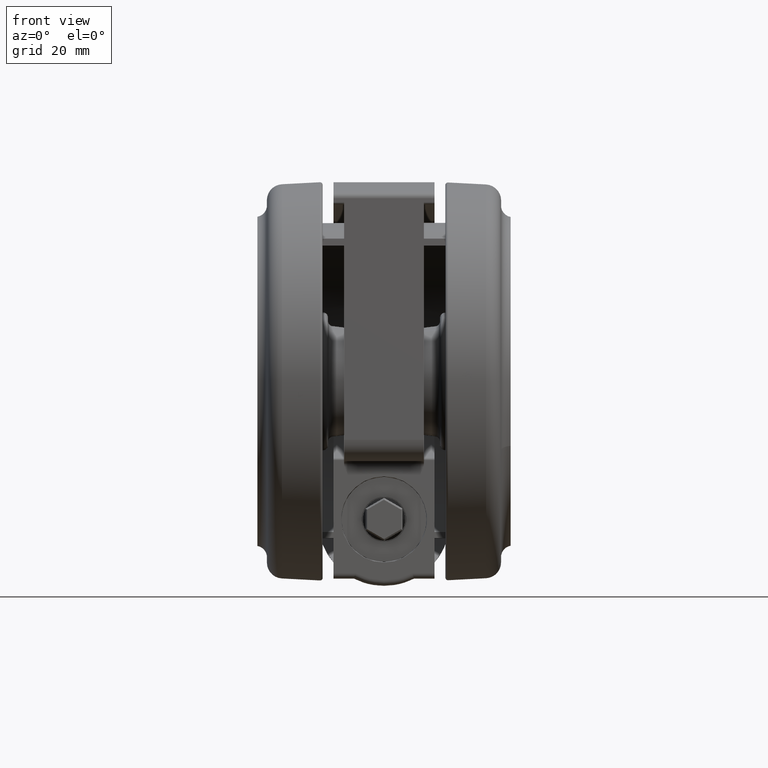
[diagram: clean part render]
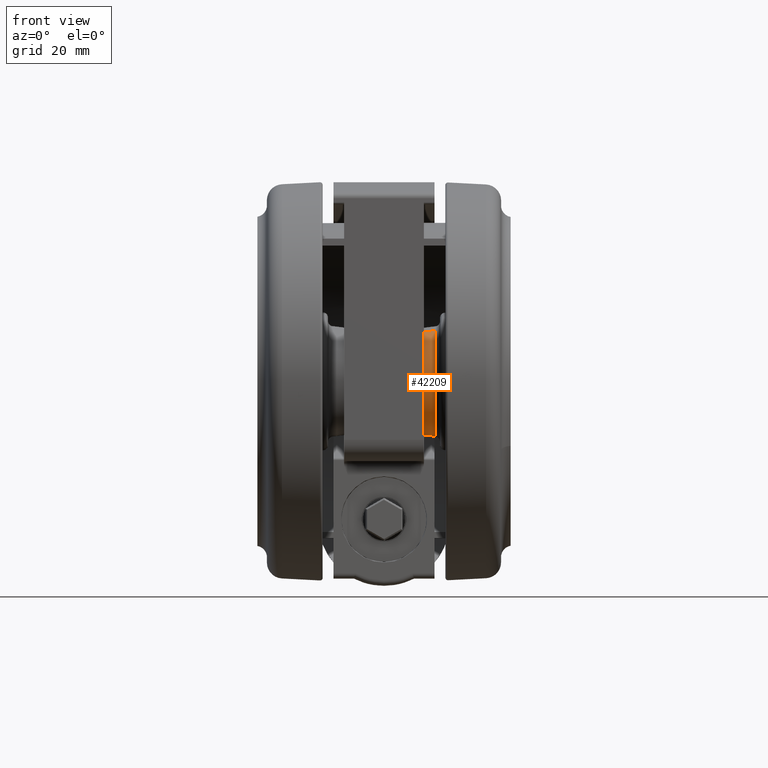
[diagram: same view with one face highlighted and labeled with its STEP entity id]
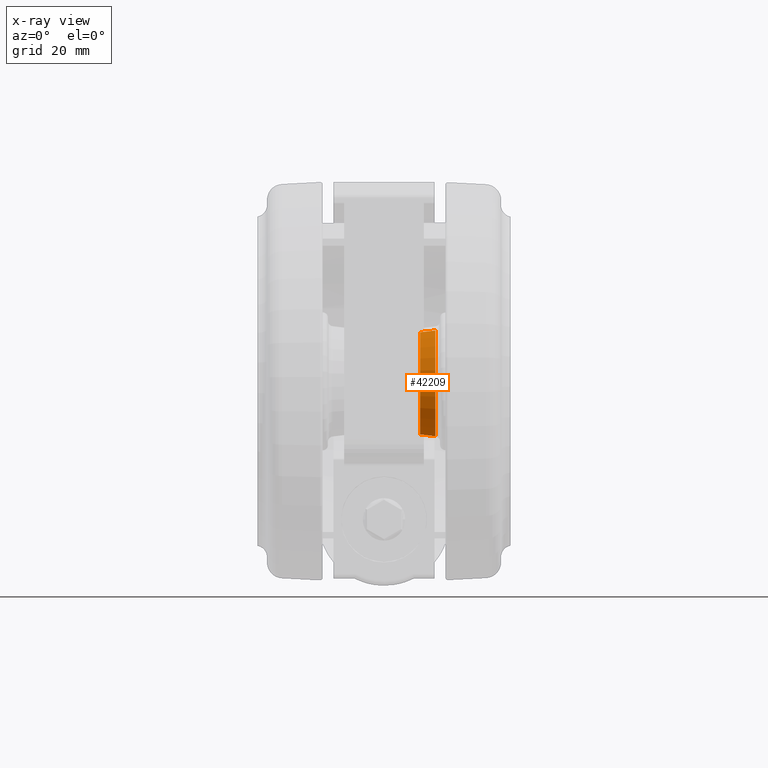
[diagram: x-ray of the same camera — body ghosted, the highlighted face saturated]
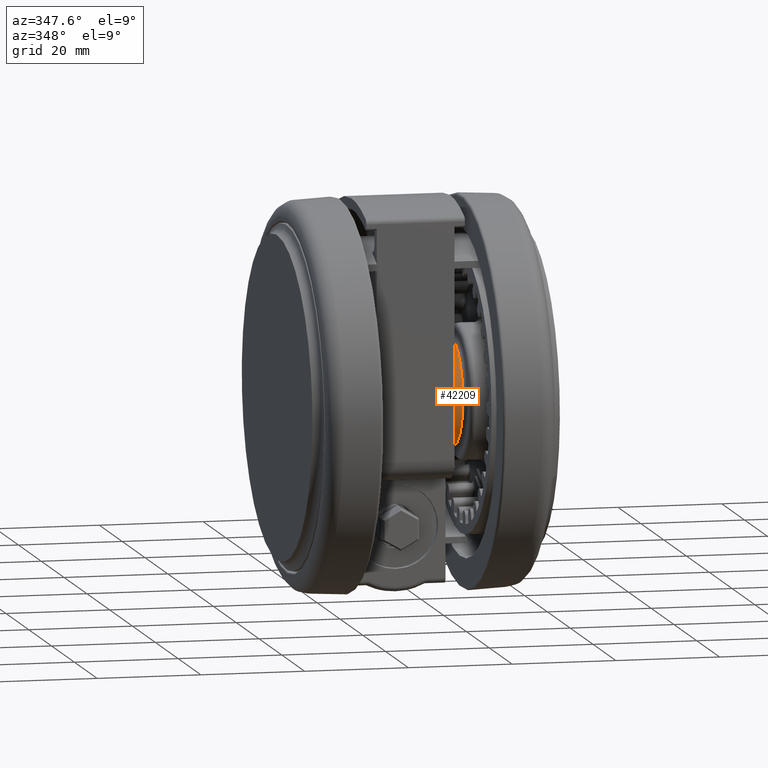
[diagram: same view with one face highlighted and labeled with its STEP entity id]
A machine part, front view. The second image highlights one B-rep face of the part: STEP entity #42209.
The next image is the same camera in x-ray: the body ghosted, the highlighted face saturated — about 0% of this face is hidden behind the body in this view.
A second angle (auxiliary view) of the same face is appended — the face is thin or edge-on in the first view.
In plain terms, the highlighted conical surface has half-angle 7.125 deg.
Its self-contained STEP definition (entity closure, byte-faithful):
#934 = LINE ( 'NONE', #34475, #47195 ) ;
#1302 = AXIS2_PLACEMENT_3D ( 'NONE', #2395, #33689, #6893 ) ;
#2244 = DIRECTION ( 'NONE',  ( -3.164135620181696900E-015, 1.000000000000000000, 0.0000000000000000000 ) ) ;
#2395 = CARTESIAN_POINT ( 'NONE',  ( -3.816391647148975600E-014, -3.469446951953614200E-014, -17.03721042037674500 ) ) ;
#6346 = DIRECTION ( 'NONE',  ( -0.0000000000000000000, -0.0000000000000000000, -1.000000000000000000 ) ) ;
#6893 = DIRECTION ( 'NONE',  ( 3.164135620181695700E-015, -1.000000000000000000, 0.0000000000000000000 ) ) ;
#6969 = VERTEX_POINT ( 'NONE', #45679 ) ;
#7719 = LINE ( 'NONE', #13411, #42030 ) ;
#12667 = EDGE_CURVE ( 'NONE', #37707, #6969, #934, .T. ) ;
#13115 = VERTEX_POINT ( 'NONE', #38546 ) ;
#13411 = CARTESIAN_POINT ( 'NONE',  ( -7.747207068820147700E-015, -10.00000000000003600, -17.29999999999998300 ) ) ;
#13972 = EDGE_CURVE ( 'NONE', #37707, #13115, #22543, .T. ) ;
#14487 = ORIENTED_EDGE ( 'NONE', *, *, #18420, .T. ) ;
#15783 = CARTESIAN_POINT ( 'NONE',  ( -3.816391647148975600E-014, -3.469446951953614200E-014, -17.29999999999998300 ) ) ;
#16269 = CIRCLE ( 'NONE', #57723, 10.39050434182365900 ) ;
#16694 = DIRECTION ( 'NONE',  ( -3.924627218534968600E-016, 0.1240347345892083600, 0.9922778767136676300 ) ) ;
#17945 = AXIS2_PLACEMENT_3D ( 'NONE', #15783, #47080, #2244 ) ;
#18085 = DIRECTION ( 'NONE',  ( 3.772728477837203800E-016, -0.1240347345892083600, 0.9922778767136676300 ) ) ;
#18420 = EDGE_CURVE ( 'NONE', #32735, #6969, #16269, .T. ) ;
#22543 = CIRCLE ( 'NONE', #1302, 10.03284869745290000 ) ;
#24675 = EDGE_LOOP ( 'NONE', ( #45903, #34622, #14487, #35227 ) ) ;
#26086 = FACE_OUTER_BOUND ( 'NONE', #24675, .T. ) ;
#32735 = VERTEX_POINT ( 'NONE', #41440 ) ;
#33158 = CARTESIAN_POINT ( 'NONE',  ( -3.816391647148975600E-014, -3.469446951953614200E-014, -14.17596526541078500 ) ) ;
#33689 = DIRECTION ( 'NONE',  ( 0.0000000000000000000, -0.0000000000000000000, 1.000000000000000000 ) ) ;
#34475 = CARTESIAN_POINT ( 'NONE',  ( -6.980527267330671700E-014, 9.999999999999966200, -17.29999999999998300 ) ) ;
#34622 = ORIENTED_EDGE ( 'NONE', *, *, #52407, .T. ) ;
#35227 = ORIENTED_EDGE ( 'NONE', *, *, #12667, .F. ) ;
#36603 = CONICAL_SURFACE ( 'NONE', #17945, 10.00000000000000000, 0.1243549945467613400 ) ;
#37669 = DIRECTION ( 'NONE',  ( -3.164135620181696900E-015, 1.000000000000000000, 0.0000000000000000000 ) ) ;
#37707 = VERTEX_POINT ( 'NONE', #53132 ) ;
#38546 = CARTESIAN_POINT ( 'NONE',  ( -7.103356750299555800E-015, -10.03284869745293400, -17.03721042037674500 ) ) ;
#41440 = CARTESIAN_POINT ( 'NONE',  ( -5.050329969112175100E-015, -10.39050434182369500, -14.17596526541078500 ) ) ;
#42030 = VECTOR ( 'NONE', #18085, 1000.000000000000100 ) ;
#42209 = ADVANCED_FACE ( 'NONE', ( #26086 ), #36603, .T. ) ;
#45679 = CARTESIAN_POINT ( 'NONE',  ( -7.104088137110656700E-014, 10.39050434182362500, -14.17596526541078500 ) ) ;
#45903 = ORIENTED_EDGE ( 'NONE', *, *, #13972, .T. ) ;
#47080 = DIRECTION ( 'NONE',  ( 0.0000000000000000000, 0.0000000000000000000, 1.000000000000000000 ) ) ;
#47195 = VECTOR ( 'NONE', #16694, 1000.000000000000100 ) ;
#52407 = EDGE_CURVE ( 'NONE', #13115, #32735, #7719, .T. ) ;
#53132 = CARTESIAN_POINT ( 'NONE',  ( -7.047504588905027500E-014, 10.03284869745286500, -17.03721042037674500 ) ) ;
#57723 = AXIS2_PLACEMENT_3D ( 'NONE', #33158, #6346, #37669 ) ;